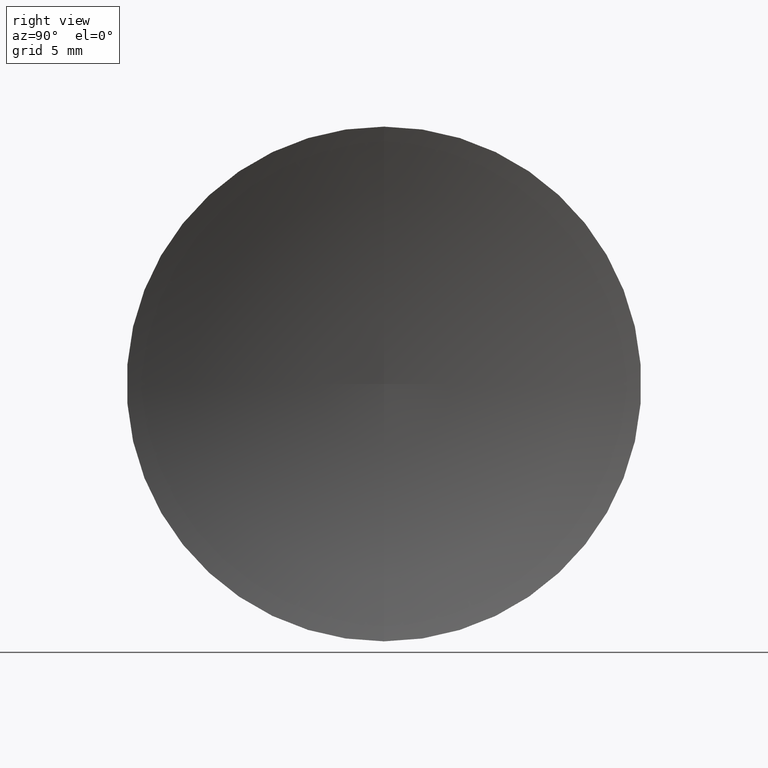
[diagram: clean part render]
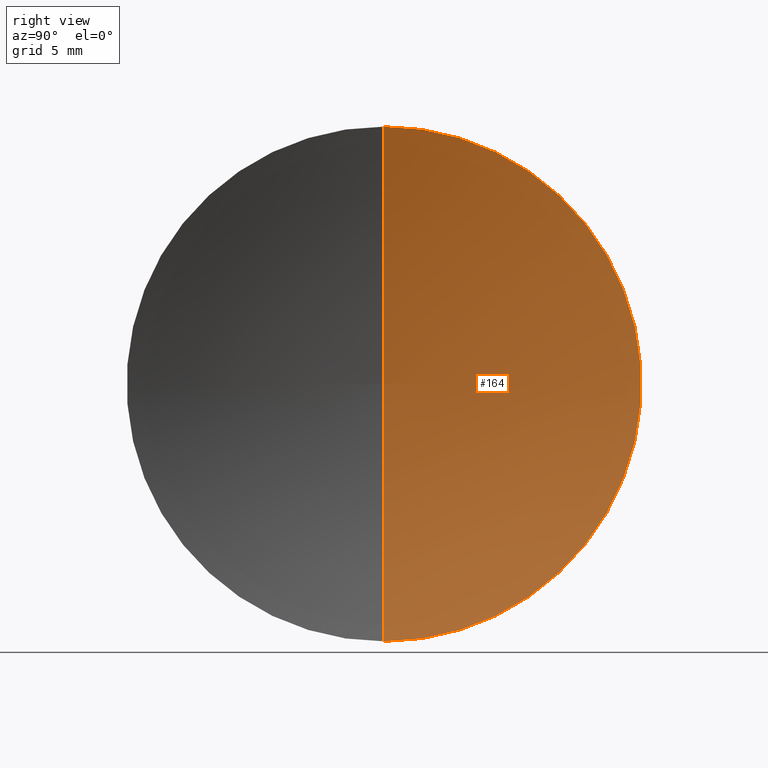
[diagram: same view with one face highlighted and labeled with its STEP entity id]
A machine part, right view. The second image highlights one B-rep face of the part: STEP entity #164.
In plain terms, the highlighted toroidal blend (fillet) surface has major radius 0.0116 mm and minor (blend) radius 41.3 mm.
Its self-contained STEP definition (entity closure, byte-faithful):
#8 = EDGE_LOOP ( 'NONE', ( #32, #75, #46 ) ) ;
#14 = CARTESIAN_POINT ( 'NONE',  ( 100.8323354242160100, 32.61076812922678400, -0.01159734503471815400 ) ) ;
#16 = DIRECTION ( 'NONE',  ( 0.0000000000000000000, -1.000000000000000000, 0.0000000000000000000 ) ) ;
#18 = CIRCLE ( 'NONE', #125, 41.30000000000000400 ) ;
#20 = DIRECTION ( 'NONE',  ( -1.000000000000000000, -0.0000000000000000000, -0.0000000000000000000 ) ) ;
#22 = VERTEX_POINT ( 'NONE', #103 ) ;
#26 = CARTESIAN_POINT ( 'NONE',  ( 100.8323354242160100, 32.61076812922678400, 0.01159734503471815400 ) ) ;
#32 = ORIENTED_EDGE ( 'NONE', *, *, #85, .F. ) ;
#45 = AXIS2_PLACEMENT_3D ( 'NONE', #156, #107, #73 ) ;
#46 = ORIENTED_EDGE ( 'NONE', *, *, #51, .T. ) ;
#47 = DIRECTION ( 'NONE',  ( -0.0000000000000000000, 1.000000000000000000, 1.224646799147353200E-016 ) ) ;
#51 = EDGE_CURVE ( 'NONE', #67, #22, #18, .T. ) ;
#52 = CIRCLE ( 'NONE', #140, 41.30000000000000400 ) ;
#61 = TOROIDAL_SURFACE ( 'NONE', #131, 0.01159734503471815400, 41.30000000000000400 ) ;
#67 = VERTEX_POINT ( 'NONE', #124 ) ;
#73 = DIRECTION ( 'NONE',  ( 0.0000000000000000000, 0.0000000000000000000, 1.000000000000000000 ) ) ;
#75 = ORIENTED_EDGE ( 'NONE', *, *, #93, .F. ) ;
#85 = EDGE_CURVE ( 'NONE', #139, #22, #52, .T. ) ;
#87 = DIRECTION ( 'NONE',  ( 0.0000000000000000000, 0.0000000000000000000, 1.000000000000000000 ) ) ;
#93 = EDGE_CURVE ( 'NONE', #67, #139, #129, .T. ) ;
#103 = CARTESIAN_POINT ( 'NONE',  ( 59.53233705252611000, 32.61076812922678400, 0.0000000000000000000 ) ) ;
#107 = DIRECTION ( 'NONE',  ( -1.000000000000000000, -0.0000000000000000000, -0.0000000000000000000 ) ) ;
#113 = FACE_OUTER_BOUND ( 'NONE', #8, .T. ) ;
#122 = DIRECTION ( 'NONE',  ( 0.0000000000000000000, 0.0000000000000000000, -1.000000000000000000 ) ) ;
#124 = CARTESIAN_POINT ( 'NONE',  ( 61.46572775823270300, 32.61076812922678400, 12.50000000000000000 ) ) ;
#125 = AXIS2_PLACEMENT_3D ( 'NONE', #26, #16, #122 ) ;
#129 = CIRCLE ( 'NONE', #45, 12.49999999999999600 ) ;
#131 = AXIS2_PLACEMENT_3D ( 'NONE', #145, #20, #87 ) ;
#136 = DIRECTION ( 'NONE',  ( 0.0000000000000000000, -1.680119589323783900E-016, 1.000000000000000000 ) ) ;
#138 = CARTESIAN_POINT ( 'NONE',  ( 61.46572775823270300, 32.61076812922678400, -12.50000000000000000 ) ) ;
#139 = VERTEX_POINT ( 'NONE', #138 ) ;
#140 = AXIS2_PLACEMENT_3D ( 'NONE', #14, #47, #136 ) ;
#145 = CARTESIAN_POINT ( 'NONE',  ( 100.8323354242160100, 32.61076812922678400, 0.0000000000000000000 ) ) ;
#156 = CARTESIAN_POINT ( 'NONE',  ( 61.46572775823270300, 32.61076812922678400, 0.0000000000000000000 ) ) ;
#164 = ADVANCED_FACE ( 'NONE', ( #113 ), #61, .F. ) ;